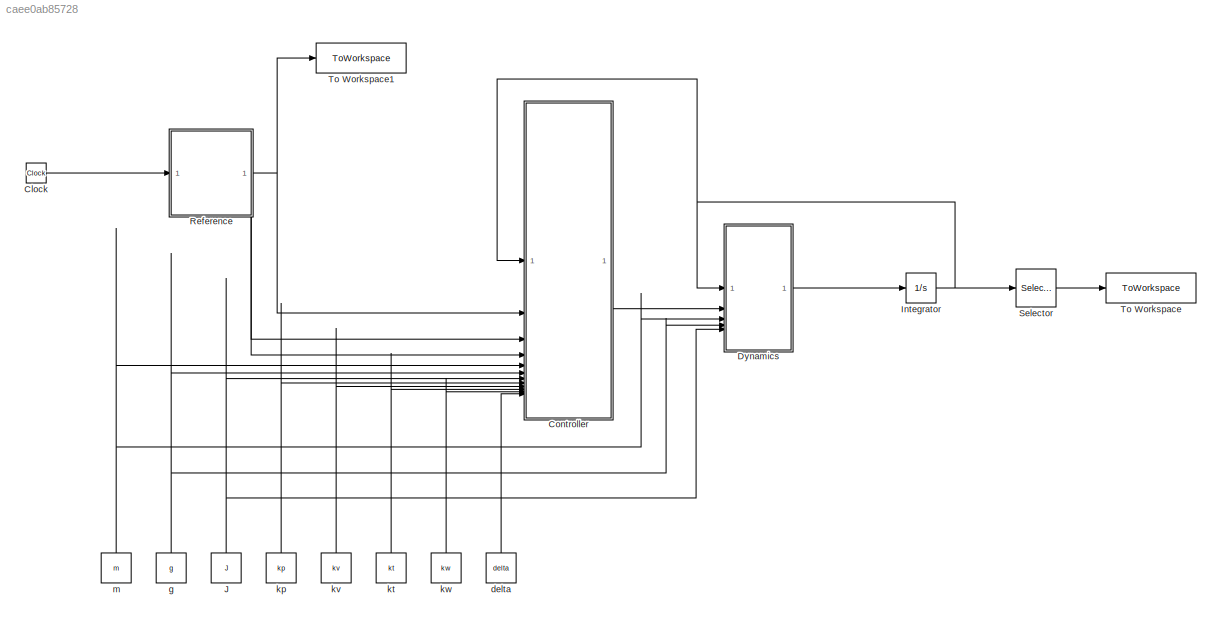
MODEL slx_caee0ab85728
KIND model
CONFIG AbsTol = auto
CONFIG EnableMultiTasking = off
CONFIG FixedStep = 0.001
CONFIG MaxStep = auto
CONFIG MinStep = auto
CONFIG RelTol = 1e-3
CONFIG SampleTimeConstraint = Unconstrained
CONFIG SolverName = ode4
CONFIG StartTime = 0.0
CONFIG StopTime = 80.0
BLOCK [Clock] Clock
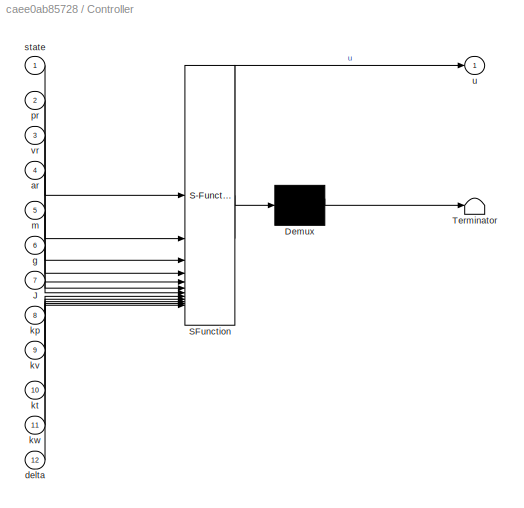
BLOCK [SubSystem] Controller
  ErrorFcn = Stateflow.Translate.translate
  PermitHierarchicalResolution = ExplicitOnly
  SFBlockType = MATLAB Function
  TreatAsAtomicUnit = on
BLOCK [Demux] Controller/ Demux 
  Outputs = 1
BLOCK [S-Function] Controller/ SFunction 
  EnableBusSupport = off
  FunctionName = sf_sfun
  PortCounts = [12 2]
  SFcnIsStateOwnerBlock = off
  SFunctionDeploymentMode = off
  Tag = Stateflow S-Function 1
BLOCK [Terminator] Controller/ Terminator 
BLOCK [Inport] Controller/J
  Port = 7
BLOCK [Inport] Controller/ar
  Port = 4
BLOCK [Inport] Controller/delta
  Port = 12
BLOCK [Inport] Controller/g
  Port = 6
BLOCK [Inport] Controller/kp
  Port = 8
BLOCK [Inport] Controller/kt
  Port = 10
BLOCK [Inport] Controller/kv
  Port = 9
BLOCK [Inport] Controller/kw
  Port = 11
BLOCK [Inport] Controller/m
  Port = 5
BLOCK [Inport] Controller/pr
  Port = 2
BLOCK [Inport] Controller/state
BLOCK [Outport] Controller/u
BLOCK [Inport] Controller/vr
  Port = 3
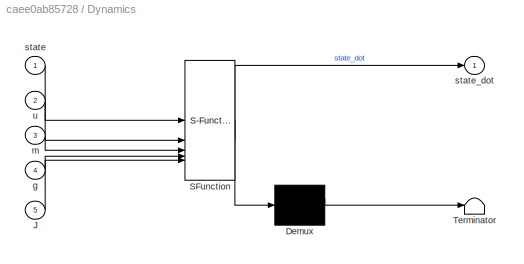
BLOCK [SubSystem] Dynamics
  ErrorFcn = Stateflow.Translate.translate
  PermitHierarchicalResolution = ExplicitOnly
  SFBlockType = MATLAB Function
  TreatAsAtomicUnit = on
BLOCK [Demux] Dynamics/ Demux 
  Outputs = 1
BLOCK [S-Function] Dynamics/ SFunction 
  EnableBusSupport = off
  FunctionName = sf_sfun
  PortCounts = [5 2]
  SFcnIsStateOwnerBlock = off
  SFunctionDeploymentMode = off
  Tag = Stateflow S-Function 3
BLOCK [Terminator] Dynamics/ Terminator 
BLOCK [Inport] Dynamics/J
  Port = 5
BLOCK [Inport] Dynamics/g
  Port = 4
BLOCK [Inport] Dynamics/m
  Port = 3
BLOCK [Inport] Dynamics/state
BLOCK [Outport] Dynamics/state_dot
BLOCK [Inport] Dynamics/u
  Port = 2
BLOCK [Integrator] Integrator
  InitialCondition = [p0; v0; Q0; w0]
BLOCK [Constant] J
  NameLocation = right
  Value = J
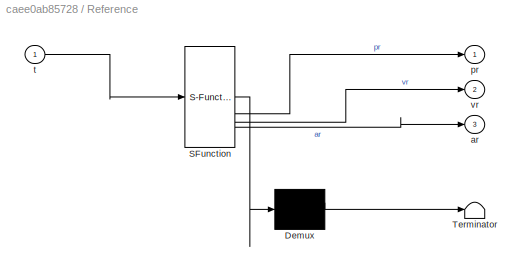
BLOCK [SubSystem] Reference
  ErrorFcn = Stateflow.Translate.translate
  PermitHierarchicalResolution = ExplicitOnly
  SFBlockType = MATLAB Function
  TreatAsAtomicUnit = on
BLOCK [Demux] Reference/ Demux 
  Outputs = 1
BLOCK [S-Function] Reference/ SFunction 
  EnableBusSupport = off
  FunctionName = sf_sfun
  PortCounts = [1 4]
  SFcnIsStateOwnerBlock = off
  SFunctionDeploymentMode = off
  Tag = Stateflow S-Function 2
BLOCK [Terminator] Reference/ Terminator 
BLOCK [Outport] Reference/ar
  Port = 3
BLOCK [Outport] Reference/pr
BLOCK [Inport] Reference/t
BLOCK [Outport] Reference/vr
  Port = 2
BLOCK [Selector] Selector
  IndexOptions = Index vector (dialog)
  Indices = [1 2 3]
  InputPortWidth = 13
  OutputSizes = 1
BLOCK [ToWorkspace] To Workspace
  FixptAsFi = on
  MaxDataPoints = inf
  SampleTime = -1
  SaveFormat = Timeseries
  VariableName = out_p
BLOCK [ToWorkspace] To Workspace1
  FixptAsFi = on
  MaxDataPoints = inf
  SampleTime = -1
  SaveFormat = Timeseries
  VariableName = out_pr
BLOCK [Constant] delta
  NameLocation = right
  Value = delta
BLOCK [Constant] g
  NameLocation = right
  Value = g
BLOCK [Constant] kp
  NameLocation = right
  Value = kp
BLOCK [Constant] kt
  NameLocation = right
  Value = kt
BLOCK [Constant] kv
  NameLocation = right
  Value = kv
BLOCK [Constant] kw
  NameLocation = right
  Value = kw
BLOCK [Constant] m
  NameLocation = right
  Value = m
LINE Clock:1 -> Reference:1
LINE Controller:1 -> Dynamics:2
LINE Dynamics:1 -> Integrator:1
NET Integrator:1 -> Controller:1, Dynamics:1, Selector:1
NET J:1 -> Controller:7, Dynamics:5
NET Reference:1 -> Controller:2, To Workspace1:1
LINE Reference:2 -> Controller:3
LINE Reference:3 -> Controller:4
LINE Selector:1 -> To Workspace:1
LINE delta:1 -> Controller:12
NET g:1 -> Controller:6, Dynamics:4
LINE kp:1 -> Controller:8
LINE kt:1 -> Controller:10
LINE kv:1 -> Controller:9
LINE kw:1 -> Controller:11
NET m:1 -> Controller:5, Dynamics:3
note: NET lines group one-source signal fan-out (src -> all destinations, sorted); 1:1 wires keep LINE
CHART Controller states=1 transitions=1
  STATE_LABEL 'eML_blk_kernel()'
  STATE_LABEL 'SCRIPT:\nfunction u = Controller(state, pr, vr, ar, m, g, J, kp, kv, kt, kw, delta)\n    % 解包状态\n    p = state(1:3);\n    v = state(4:6);\n    Q = state(7:10); % [sigma; q_vec]\n    w = state(11:13);\n    \n    % --- 1. 位置环 (论文 Eq. 10) ---\n    % 单机跟随模式：没有邻居，只跟领航者\n    % 误差定义\n    p_err = p - pr - delta;\n    v_err = v - vr;\n    \n    e3 = [0;0;1];\n    % 虚拟控制力 u_c\n    % 注意：这里假设能直接获取 ar (完美观测器)，省去了复杂的 Estimator...<+1092ch>'
CHART Reference states=1 transitions=1
  STATE_LABEL 'eML_blk_kernel()'
  STATE_LABEL 'SCRIPT:\nfunction [pr, vr, ar] = Reference(t)\n    % 论文 Section IV 的 8 字形螺旋轨迹\n    % pr: 位置, vr: 速度, ar: 加速度\n    \n    % 位置 pr = [3cos(0.2t), 2sin(0.2t), t]\n    pr = [3*cos(0.2*t); 2*sin(0.2*t); t];\n    \n    % 速度 (对时间求导)\n    vr = [-0.6*sin(0.2*t); 0.4*cos(0.2*t); 1];\n    \n    % 加速度 (再求导)\n    ar = [-0.12*cos(0.2*t); -0.08*sin(0.2*t); 0];\nend'
CHART Dynamics states=1 transitions=1
  STATE_LABEL 'eML_blk_kernel()'
  STATE_LABEL 'SCRIPT:\nfunction state_dot = Dynamics(state, u, m, g, J)\n    % 解包\n    p = state(1:3);\n    v = state(4:6);\n    Q = state(7:10); \n    w = state(11:13);\n    \n    T = u(1);     % 推力\n    tau = u(2:4); % 力矩\n    \n    % 1. 位置导数\n    p_dot = v;\n    \n    % 2. 速度导数 Eq. 3\n    % R(Q) 计算\n    s = Q(1); x = Q(2); y = Q(3); z = Q(4);\n    R = [1-2*(y^2+z^2), 2*(x*y-s*z),   2*(x*z+s*y);\n         2*(x*y+s*z),   1-2*(x...<+487ch>'
CHART  states=0 transitions=0
CHART  states=0 transitions=0
CHART  states=0 transitions=0
